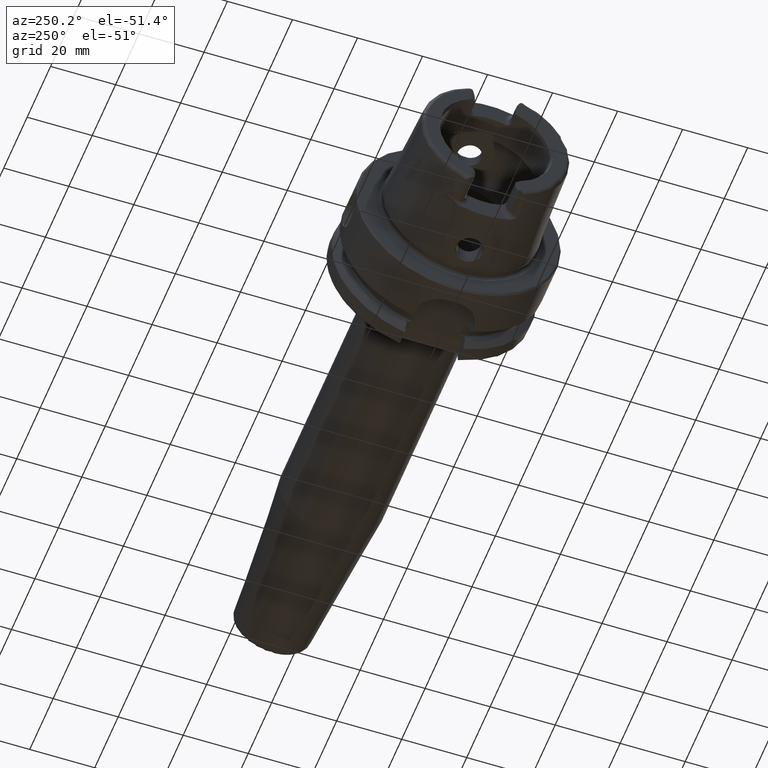
[diagram: clean part render]
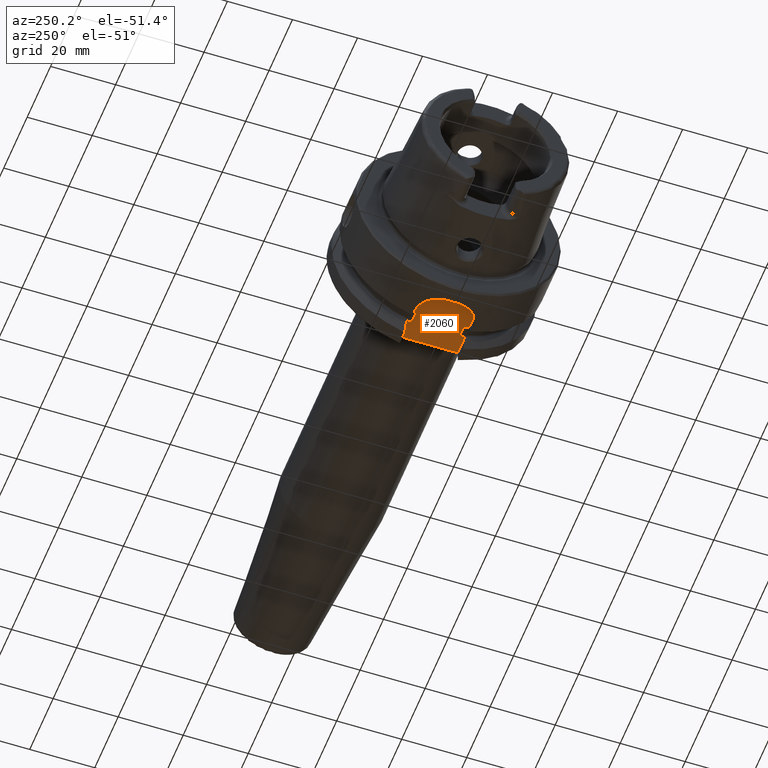
[diagram: same view with one face highlighted and labeled with its STEP entity id]
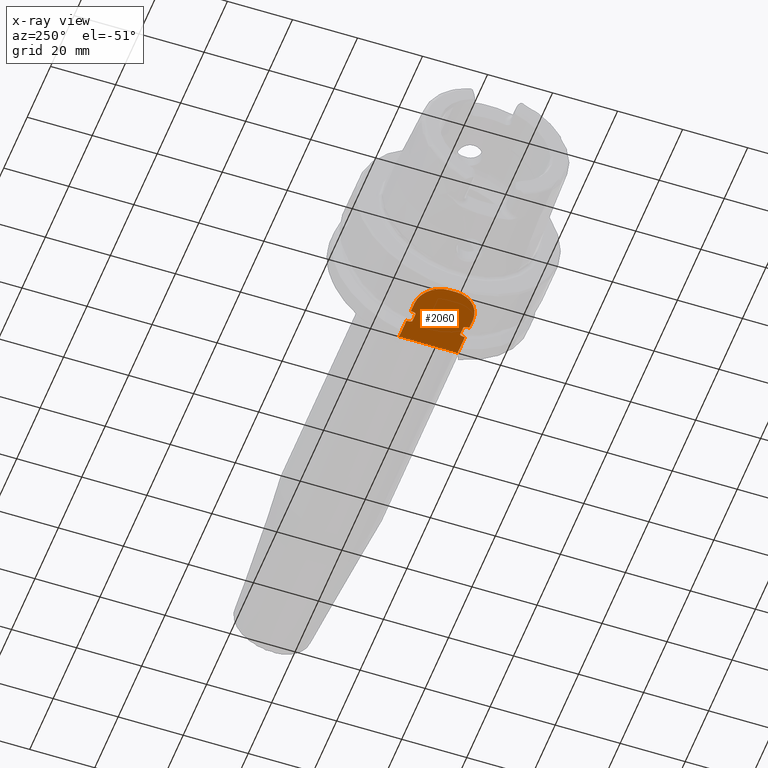
[diagram: x-ray of the same camera — body ghosted, the highlighted face saturated]
A machine part, auxiliary view. The second image highlights one B-rep face of the part: STEP entity #2060.
The next image is the same camera in x-ray: the body ghosted, the highlighted face saturated — about 0% of this face is hidden behind the body in this view.
In plain terms, the highlighted planar face has unit normal (0, 0, 1).
Its self-contained STEP definition (entity closure, byte-faithful):
#67=B_SPLINE_CURVE_WITH_KNOTS('',3,(#4066,#4067,#4068,#4069,#4070,#4071,
#4072,#4073,#4074,#4075),.UNSPECIFIED.,.F.,.F.,(4,2,2,2,4),(0.15835931245442,
0.289228035148658,0.316691561230897,0.323545183976989,0.328785692776271),
 .UNSPECIFIED.);
#68=B_SPLINE_CURVE_WITH_KNOTS('',3,(#4087,#4088,#4089,#4090,#4091,#4092,
#4093,#4094,#4095,#4096),.UNSPECIFIED.,.F.,.F.,(4,2,2,2,4),(0.328785692776271,
0.334026201575553,0.340879824321645,0.368343350403884,0.499212073098123),
 .UNSPECIFIED.);
#69=B_SPLINE_CURVE_WITH_KNOTS('',3,(#4099,#4100,#4101,#4102,#4103,#4104,
#4105,#4106,#4107,#4108),.UNSPECIFIED.,.F.,.F.,(4,2,2,2,4),(0.15835931245442,
0.289228035148658,0.316691561230897,0.323545183976988,0.32878569277627),
 .UNSPECIFIED.);
#70=B_SPLINE_CURVE_WITH_KNOTS('',3,(#4110,#4111,#4112,#4113,#4114,#4115,
#4116,#4117,#4118,#4119),.UNSPECIFIED.,.F.,.F.,(4,2,2,2,4),(0.32878569277627,
0.334026201575552,0.340879824321644,0.368343350403882,0.49921207309812),
 .UNSPECIFIED.);
#123=PLANE('',#2277);
#267=FACE_OUTER_BOUND('',#396,.T.);
#396=EDGE_LOOP('',(#1638,#1639,#1640,#1641,#1642,#1643,#1644,#1645,#1646,
#1647,#1648,#1649,#1650,#1651));
#478=LINE('',#3100,#588);
#533=LINE('',#4020,#643);
#535=LINE('',#4050,#645);
#538=LINE('',#4077,#648);
#539=LINE('',#4081,#649);
#540=LINE('',#4085,#650);
#541=LINE('',#4098,#651);
#542=LINE('',#4120,#652);
#588=VECTOR('',#2482,10.);
#643=VECTOR('',#2725,10.);
#645=VECTOR('',#2729,10.);
#648=VECTOR('',#2734,10.);
#649=VECTOR('',#2737,10.);
#650=VECTOR('',#2740,10.);
#651=VECTOR('',#2741,10.);
#652=VECTOR('',#2742,10.);
#754=CIRCLE('',#2278,8.);
#755=CIRCLE('',#2279,8.);
#838=VERTEX_POINT('',#3097);
#839=VERTEX_POINT('',#3099);
#952=VERTEX_POINT('',#4015);
#956=VERTEX_POINT('',#4049);
#960=VERTEX_POINT('',#4064);
#961=VERTEX_POINT('',#4065);
#962=VERTEX_POINT('',#4076);
#963=VERTEX_POINT('',#4078);
#964=VERTEX_POINT('',#4080);
#965=VERTEX_POINT('',#4082);
#966=VERTEX_POINT('',#4084);
#967=VERTEX_POINT('',#4086);
#968=VERTEX_POINT('',#4097);
#969=VERTEX_POINT('',#4109);
#1055=EDGE_CURVE('',#838,#839,#478,.T.);
#1207=EDGE_CURVE('',#952,#838,#533,.T.);
#1212=EDGE_CURVE('',#839,#956,#535,.T.);
#1217=EDGE_CURVE('',#960,#961,#67,.T.);
#1218=EDGE_CURVE('',#962,#960,#538,.T.);
#1219=EDGE_CURVE('',#963,#962,#754,.T.);
#1220=EDGE_CURVE('',#964,#963,#539,.T.);
#1221=EDGE_CURVE('',#965,#964,#755,.T.);
#1222=EDGE_CURVE('',#966,#965,#540,.T.);
#1223=EDGE_CURVE('',#967,#966,#68,.T.);
#1224=EDGE_CURVE('',#968,#967,#541,.T.);
#1225=EDGE_CURVE('',#956,#968,#69,.T.);
#1226=EDGE_CURVE('',#969,#952,#70,.T.);
#1227=EDGE_CURVE('',#961,#969,#542,.T.);
#1638=ORIENTED_EDGE('',*,*,#1217,.F.);
#1639=ORIENTED_EDGE('',*,*,#1218,.F.);
#1640=ORIENTED_EDGE('',*,*,#1219,.F.);
#1641=ORIENTED_EDGE('',*,*,#1220,.F.);
#1642=ORIENTED_EDGE('',*,*,#1221,.F.);
#1643=ORIENTED_EDGE('',*,*,#1222,.F.);
#1644=ORIENTED_EDGE('',*,*,#1223,.F.);
#1645=ORIENTED_EDGE('',*,*,#1224,.F.);
#1646=ORIENTED_EDGE('',*,*,#1225,.F.);
#1647=ORIENTED_EDGE('',*,*,#1212,.F.);
#1648=ORIENTED_EDGE('',*,*,#1055,.F.);
#1649=ORIENTED_EDGE('',*,*,#1207,.F.);
#1650=ORIENTED_EDGE('',*,*,#1226,.F.);
#1651=ORIENTED_EDGE('',*,*,#1227,.F.);
#2060=ADVANCED_FACE('',(#267),#123,.F.);
#2277=AXIS2_PLACEMENT_3D('',#4063,#2732,#2733);
#2278=AXIS2_PLACEMENT_3D('',#4079,#2735,#2736);
#2279=AXIS2_PLACEMENT_3D('',#4083,#2738,#2739);
#2482=DIRECTION('',(0.,1.,0.));
#2725=DIRECTION('',(1.,-2.56205313375036E-16,0.));
#2729=DIRECTION('',(-1.,2.56205313375036E-16,0.));
#2732=DIRECTION('center_axis',(0.,0.,1.));
#2733=DIRECTION('ref_axis',(1.,0.,0.));
#2734=DIRECTION('',(1.,-2.56205313375036E-16,0.));
#2735=DIRECTION('center_axis',(0.,0.,1.));
#2736=DIRECTION('ref_axis',(-1.,-2.42861286636753E-16,0.));
#2737=DIRECTION('',(0.,-1.,0.));
#2738=DIRECTION('center_axis',(0.,0.,1.));
#2739=DIRECTION('ref_axis',(0.,1.,0.));
#2740=DIRECTION('',(-1.,2.56205313375036E-16,0.));
#2741=DIRECTION('',(-1.,0.,0.));
#2742=DIRECTION('',(1.,0.,0.));
#3097=CARTESIAN_POINT('',(26.,-9.,-26.5));
#3099=CARTESIAN_POINT('',(26.,9.,-26.5));
#3100=CARTESIAN_POINT('',(26.,1.94289029309402E-15,-26.5));
#4015=CARTESIAN_POINT('',(19.8748205133158,-9.,-26.5));
#4020=CARTESIAN_POINT('',(13.,-9.,-26.5));
#4049=CARTESIAN_POINT('',(19.8748205133158,9.,-26.5));
#4050=CARTESIAN_POINT('',(26.,9.,-26.5));
#4063=CARTESIAN_POINT('Origin',(15.5,3.88578058618805E-15,-26.5));
#4064=CARTESIAN_POINT('',(16.1251794866842,-9.,-26.5));
#4065=CARTESIAN_POINT('',(16.625,-7.34846922834952,-26.5));
#4066=CARTESIAN_POINT('Ctrl Pts',(16.1251794866842,-9.,-26.5));
#4067=CARTESIAN_POINT('Ctrl Pts',(16.12898241235,-8.55877260788573,-26.5));
#4068=CARTESIAN_POINT('Ctrl Pts',(16.1819334034884,-8.04136347440828,-26.5));
#4069=CARTESIAN_POINT('Ctrl Pts',(16.3906456489289,-7.5566112023157,-26.5));
#4070=CARTESIAN_POINT('Ctrl Pts',(16.4411490019356,-7.4590543697872,-26.5));
#4071=CARTESIAN_POINT('Ctrl Pts',(16.5270295504762,-7.38349170057081,-26.5));
#4072=CARTESIAN_POINT('Ctrl Pts',(16.5496994821687,-7.36807649661538,-26.5));
#4073=CARTESIAN_POINT('Ctrl Pts',(16.587038394856,-7.35287762173868,-26.5));
#4074=CARTESIAN_POINT('Ctrl Pts',(16.6075316373357,-7.34846922834952,-26.5));
#4075=CARTESIAN_POINT('Ctrl Pts',(16.625,-7.34846922834952,-26.5));
#4076=CARTESIAN_POINT('',(13.,-9.,-26.5));
#4077=CARTESIAN_POINT('',(13.,-9.,-26.5));
#4078=CARTESIAN_POINT('',(5.,-0.999999999999999,-26.5));
#4079=CARTESIAN_POINT('Origin',(13.,-0.999999999999997,-26.5));
#4080=CARTESIAN_POINT('',(5.,1.,-26.5));
#4081=CARTESIAN_POINT('',(5.,1.,-26.5));
#4082=CARTESIAN_POINT('',(13.,9.00000000000001,-26.5));
#4083=CARTESIAN_POINT('Origin',(13.,1.,-26.5));
#4084=CARTESIAN_POINT('',(16.1251794866842,9.,-26.5));
#4085=CARTESIAN_POINT('',(26.,9.,-26.5));
#4086=CARTESIAN_POINT('',(16.625,7.34846922834952,-26.5));
#4087=CARTESIAN_POINT('Ctrl Pts',(16.625,7.34846922834952,-26.5));
#4088=CARTESIAN_POINT('Ctrl Pts',(16.6075316373357,7.34846922834952,-26.5));
#4089=CARTESIAN_POINT('Ctrl Pts',(16.587038394856,7.35287762173868,-26.5));
#4090=CARTESIAN_POINT('Ctrl Pts',(16.5496994821687,7.36807649661538,-26.5));
#4091=CARTESIAN_POINT('Ctrl Pts',(16.5270295504762,7.38349170057081,-26.5));
#4092=CARTESIAN_POINT('Ctrl Pts',(16.4411490019356,7.4590543697872,-26.5));
#4093=CARTESIAN_POINT('Ctrl Pts',(16.3906456489289,7.5566112023157,-26.5));
#4094=CARTESIAN_POINT('Ctrl Pts',(16.1819334034884,8.04136347440828,-26.5));
#4095=CARTESIAN_POINT('Ctrl Pts',(16.12898241235,8.55877260788573,-26.5));
#4096=CARTESIAN_POINT('Ctrl Pts',(16.1251794866842,9.,-26.5));
#4097=CARTESIAN_POINT('',(19.375,7.34846922834952,-26.5));
#4098=CARTESIAN_POINT('',(18.,7.34846922834952,-26.5));
#4099=CARTESIAN_POINT('Ctrl Pts',(19.8748205133158,9.,-26.5));
#4100=CARTESIAN_POINT('Ctrl Pts',(19.87101758765,8.55877260788573,-26.5));
#4101=CARTESIAN_POINT('Ctrl Pts',(19.8180665965116,8.04136347440828,-26.5));
#4102=CARTESIAN_POINT('Ctrl Pts',(19.6093543510711,7.5566112023157,-26.5));
#4103=CARTESIAN_POINT('Ctrl Pts',(19.5588509980644,7.45905436978719,-26.5));
#4104=CARTESIAN_POINT('Ctrl Pts',(19.4729704495238,7.38349170057082,-26.5));
#4105=CARTESIAN_POINT('Ctrl Pts',(19.4503005178313,7.3680764966154,-26.5));
#4106=CARTESIAN_POINT('Ctrl Pts',(19.412961605144,7.35287762173869,-26.5));
#4107=CARTESIAN_POINT('Ctrl Pts',(19.3924683626643,7.34846922834952,-26.5));
#4108=CARTESIAN_POINT('Ctrl Pts',(19.375,7.34846922834952,-26.5));
#4109=CARTESIAN_POINT('',(19.375,-7.34846922834952,-26.5));
#4110=CARTESIAN_POINT('Ctrl Pts',(19.375,-7.34846922834952,-26.5));
#4111=CARTESIAN_POINT('Ctrl Pts',(19.3924683626643,-7.34846922834952,-26.5));
#4112=CARTESIAN_POINT('Ctrl Pts',(19.412961605144,-7.35287762173869,-26.5));
#4113=CARTESIAN_POINT('Ctrl Pts',(19.4503005178313,-7.3680764966154,-26.5));
#4114=CARTESIAN_POINT('Ctrl Pts',(19.4729704495238,-7.38349170057082,-26.5));
#4115=CARTESIAN_POINT('Ctrl Pts',(19.5588509980644,-7.45905436978719,-26.5));
#4116=CARTESIAN_POINT('Ctrl Pts',(19.6093543510711,-7.5566112023157,-26.5));
#4117=CARTESIAN_POINT('Ctrl Pts',(19.8180665965116,-8.04136347440828,-26.5));
#4118=CARTESIAN_POINT('Ctrl Pts',(19.87101758765,-8.55877260788573,-26.5));
#4119=CARTESIAN_POINT('Ctrl Pts',(19.8748205133158,-9.,-26.5));
#4120=CARTESIAN_POINT('',(18.,-7.34846922834952,-26.5));